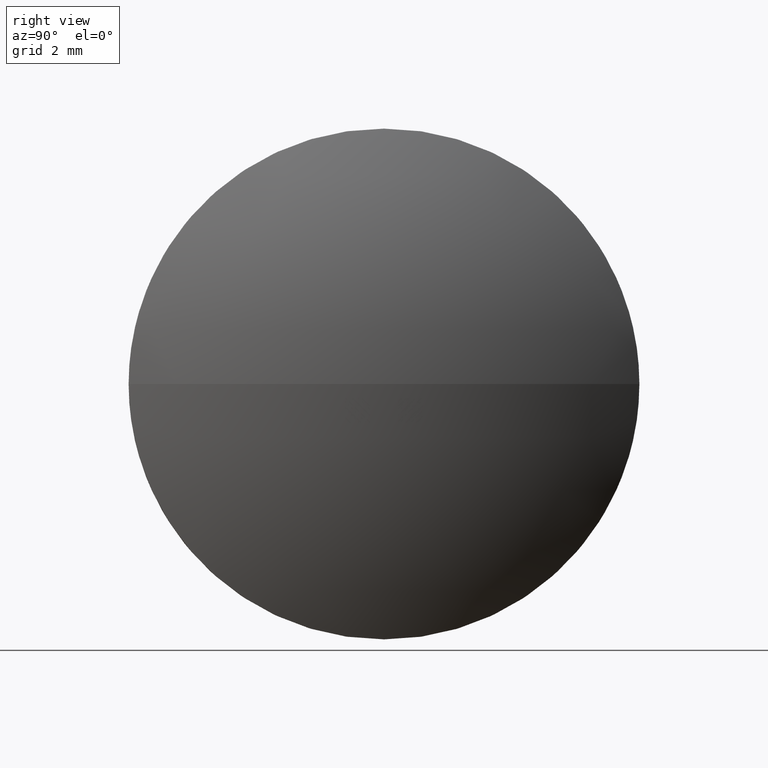
[diagram: clean part render]
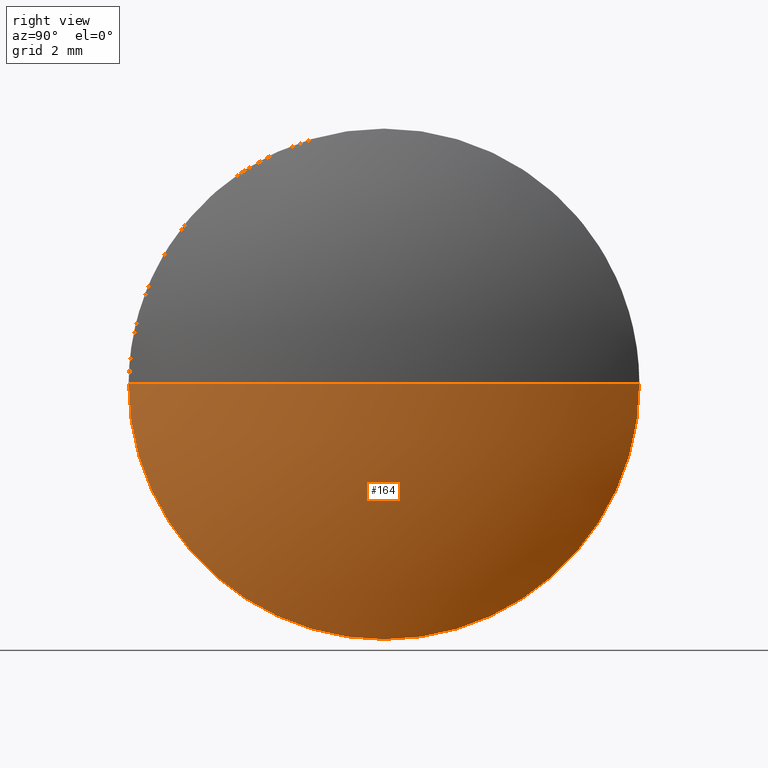
[diagram: same view with one face highlighted and labeled with its STEP entity id]
A machine part, right view. The second image highlights one B-rep face of the part: STEP entity #164.
In plain terms, the highlighted spherical surface has radius 16.2881 mm.
Its self-contained STEP definition (entity closure, byte-faithful):
#1 = DIRECTION ( 'NONE',  ( 0.0000000000000000000, 0.0000000000000000000, -1.000000000000000000 ) ) ;
#2 = AXIS2_PLACEMENT_3D ( 'NONE', #87, #1, #45 ) ;
#5 = VERTEX_POINT ( 'NONE', #9 ) ;
#8 = CARTESIAN_POINT ( 'NONE',  ( 396.8896529179952500, 34.86392856957573400, 0.0000000000000000000 ) ) ;
#9 = CARTESIAN_POINT ( 'NONE',  ( 394.7896529179952800, 42.86392856957571200, 9.797174393178796100E-016 ) ) ;
#13 = CIRCLE ( 'NONE', #155, 8.000000000000000000 ) ;
#17 = EDGE_LOOP ( 'NONE', ( #104, #47, #32, #83 ) ) ;
#30 = CARTESIAN_POINT ( 'NONE',  ( 394.7896529179952800, 34.86392856957570500, 0.0000000000000000000 ) ) ;
#31 = DIRECTION ( 'NONE',  ( 0.0000000000000000000, 0.0000000000000000000, 1.000000000000000000 ) ) ;
#32 = ORIENTED_EDGE ( 'NONE', *, *, #115, .F. ) ;
#35 = FACE_OUTER_BOUND ( 'NONE', #17, .T. ) ;
#44 = EDGE_CURVE ( 'NONE', #5, #119, #13, .T. ) ;
#45 = DIRECTION ( 'NONE',  ( -1.000000000000000000, 0.0000000000000000000, 0.0000000000000000000 ) ) ;
#47 = ORIENTED_EDGE ( 'NONE', *, *, #106, .T. ) ;
#62 = AXIS2_PLACEMENT_3D ( 'NONE', #102, #145, #186 ) ;
#72 = CARTESIAN_POINT ( 'NONE',  ( 380.6015576799000500, 34.86392856957573400, 0.0000000000000000000 ) ) ;
#82 = CARTESIAN_POINT ( 'NONE',  ( 394.7896529179952800, 26.86392856957573400, 0.0000000000000000000 ) ) ;
#83 = ORIENTED_EDGE ( 'NONE', *, *, #44, .F. ) ;
#85 = DIRECTION ( 'NONE',  ( 0.0000000000000000000, 0.0000000000000000000, 1.000000000000000000 ) ) ;
#87 = CARTESIAN_POINT ( 'NONE',  ( 380.6015576799000500, 34.86392856957573400, 0.0000000000000000000 ) ) ;
#93 = SPHERICAL_SURFACE ( 'NONE', #179, 16.28809523809521300 ) ;
#99 = VERTEX_POINT ( 'NONE', #82 ) ;
#102 = CARTESIAN_POINT ( 'NONE',  ( 380.6015576799000500, 34.86392856957573400, 0.0000000000000000000 ) ) ;
#103 = CARTESIAN_POINT ( 'NONE',  ( 394.7896529179952800, 34.86392856957570500, -8.000000000000000000 ) ) ;
#104 = ORIENTED_EDGE ( 'NONE', *, *, #161, .F. ) ;
#106 = EDGE_CURVE ( 'NONE', #107, #99, #170, .T. ) ;
#107 = VERTEX_POINT ( 'NONE', #8 ) ;
#115 = EDGE_CURVE ( 'NONE', #119, #99, #162, .T. ) ;
#118 = DIRECTION ( 'NONE',  ( -1.000000000000000000, -0.0000000000000000000, -0.0000000000000000000 ) ) ;
#119 = VERTEX_POINT ( 'NONE', #103 ) ;
#130 = DIRECTION ( 'NONE',  ( 0.0000000000000000000, -1.000000000000000000, 0.0000000000000000000 ) ) ;
#136 = CIRCLE ( 'NONE', #62, 16.28809523809521300 ) ;
#145 = DIRECTION ( 'NONE',  ( 0.0000000000000000000, -1.224646799147353200E-016, 1.000000000000000000 ) ) ;
#155 = AXIS2_PLACEMENT_3D ( 'NONE', #181, #171, #85 ) ;
#161 = EDGE_CURVE ( 'NONE', #107, #5, #136, .T. ) ;
#162 = CIRCLE ( 'NONE', #173, 8.000000000000000000 ) ;
#164 = ADVANCED_FACE ( 'NONE', ( #35 ), #93, .T. ) ;
#170 = CIRCLE ( 'NONE', #2, 16.28809523809521300 ) ;
#171 = DIRECTION ( 'NONE',  ( -1.000000000000000000, -0.0000000000000000000, -0.0000000000000000000 ) ) ;
#173 = AXIS2_PLACEMENT_3D ( 'NONE', #30, #118, #174 ) ;
#174 = DIRECTION ( 'NONE',  ( 0.0000000000000000000, 0.0000000000000000000, 1.000000000000000000 ) ) ;
#179 = AXIS2_PLACEMENT_3D ( 'NONE', #72, #31, #130 ) ;
#181 = CARTESIAN_POINT ( 'NONE',  ( 394.7896529179952800, 34.86392856957570500, 0.0000000000000000000 ) ) ;
#186 = DIRECTION ( 'NONE',  ( 0.0000000000000000000, -1.000000000000000000, -1.224646799147353000E-016 ) ) ;